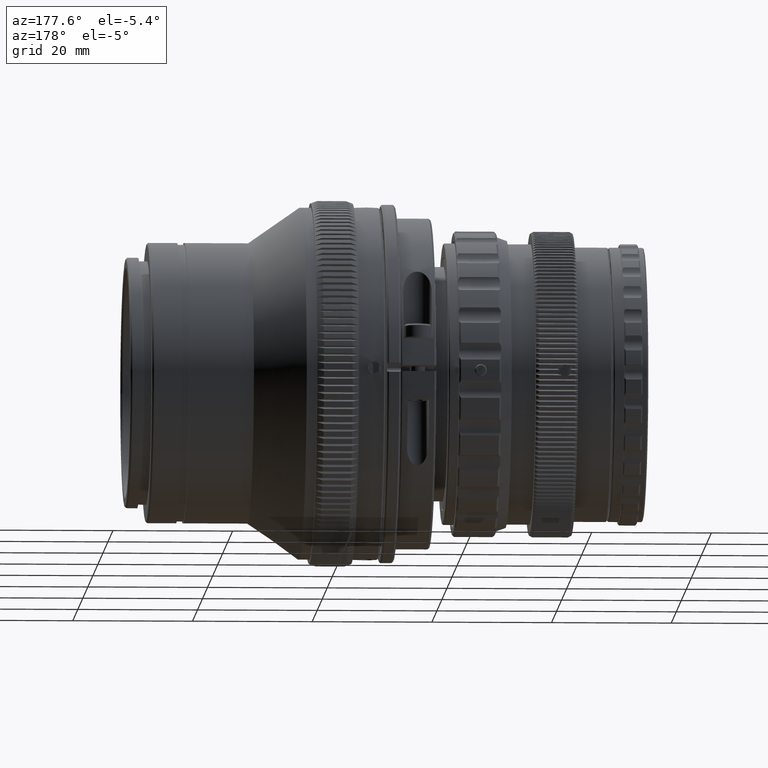
[diagram: clean part render]
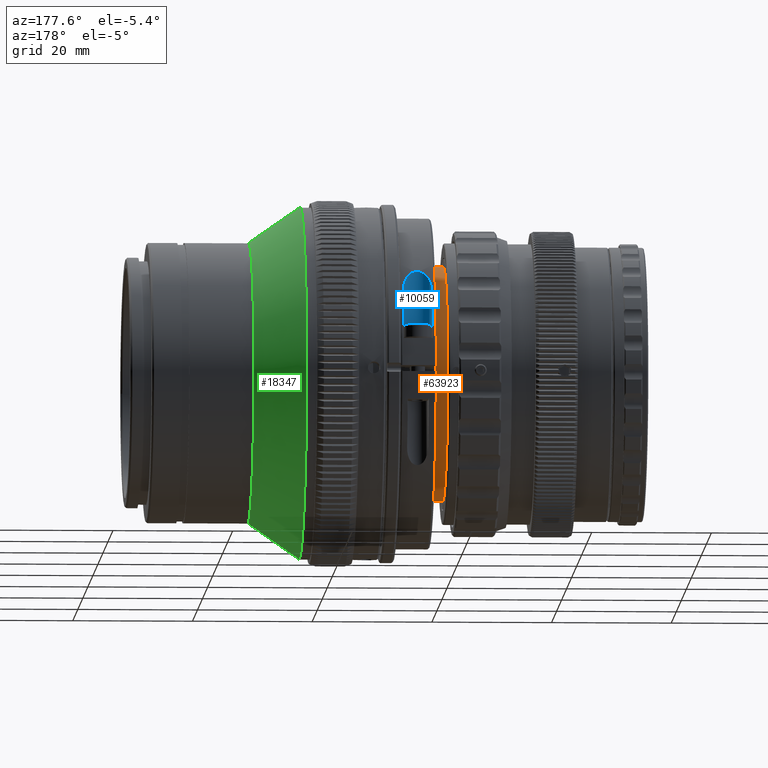
[diagram: same view with three faces highlighted in distinct colors, each labeled with its STEP entity id]
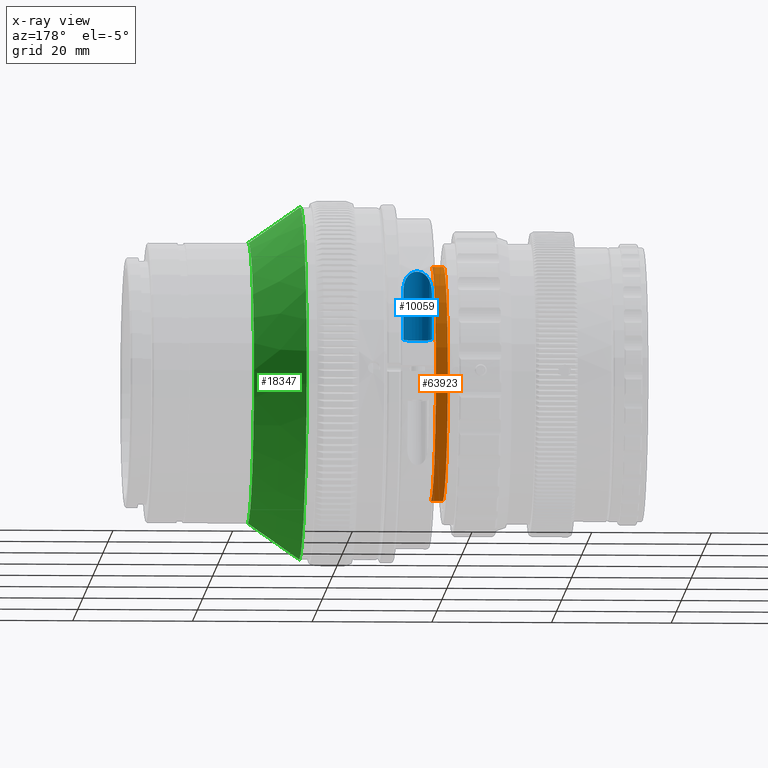
[diagram: x-ray of the same camera — body ghosted, the three highlighted faces saturated]
A machine part, auxiliary view with three faces highlighted in distinct colors.
The next image is the same camera in x-ray (body ghosted, the three faces saturated) — at least one of them is partly hidden behind the body in this view.
Their STEP definitions:

[orange] entity #63923 — the highlighted cylindrical surface (partial cylindrical patch) has radius 19.65 mm, axis along (-1, -0, -0).
#10038 = DIRECTION ( 'NONE',  ( 0.0000000000000000000, 0.0000000000000000000, 1.000000000000000000 ) ) ;
#10349 = VERTEX_POINT ( 'NONE', #62184 ) ;
#15870 = VERTEX_POINT ( 'NONE', #49673 ) ;
#18069 = CARTESIAN_POINT ( 'NONE',  ( 3.499999999999999600, 0.0000000000000000000, 0.0000000000000000000 ) ) ;
#21040 = CARTESIAN_POINT ( 'NONE',  ( 0.0000000000000000000, 0.0000000000000000000, 19.65000000000000600 ) ) ;
#23124 = FACE_OUTER_BOUND ( 'NONE', #69207, .T. ) ;
#24339 = DIRECTION ( 'NONE',  ( 0.0000000000000000000, 0.0000000000000000000, 1.000000000000000000 ) ) ;
#29272 = VECTOR ( 'NONE', #39521, 1000.000000000000000 ) ;
#29747 = AXIS2_PLACEMENT_3D ( 'NONE', #18069, #53801, #24339 ) ;
#31958 = DIRECTION ( 'NONE',  ( 1.000000000000000000, 0.0000000000000000000, 0.0000000000000000000 ) ) ;
#32055 = LINE ( 'NONE', #21040, #86886 ) ;
#35880 = DIRECTION ( 'NONE',  ( -1.000000000000000000, -0.0000000000000000000, -0.0000000000000000000 ) ) ;
#39521 = DIRECTION ( 'NONE',  ( -1.000000000000000000, -0.0000000000000000000, -0.0000000000000000000 ) ) ;
#41923 = ORIENTED_EDGE ( 'NONE', *, *, #81898, .T. ) ;
#42909 = CIRCLE ( 'NONE', #29747, 19.65000000000000600 ) ;
#48304 = CARTESIAN_POINT ( 'NONE',  ( 3.499999999999999600, 0.0000000000000000000, 19.65000000000000600 ) ) ;
#48359 = LINE ( 'NONE', #60137, #29272 ) ;
#49673 = CARTESIAN_POINT ( 'NONE',  ( 3.499999999999999600, 2.406430960324549800E-015, -19.65000000000000600 ) ) ;
#53801 = DIRECTION ( 'NONE',  ( -1.000000000000000000, -0.0000000000000000000, -0.0000000000000000000 ) ) ;
#57065 = DIRECTION ( 'NONE',  ( -1.000000000000000000, -0.0000000000000000000, -0.0000000000000000000 ) ) ;
#57740 = ORIENTED_EDGE ( 'NONE', *, *, #60376, .T. ) ;
#60062 = CYLINDRICAL_SURFACE ( 'NONE', #71409, 19.65000000000000600 ) ;
#60137 = CARTESIAN_POINT ( 'NONE',  ( 0.0000000000000000000, 2.406430960324549800E-015, -19.65000000000000600 ) ) ;
#60376 = EDGE_CURVE ( 'NONE', #15870, #81476, #48359, .T. ) ;
#62184 = CARTESIAN_POINT ( 'NONE',  ( 1.499999999999999300, 0.0000000000000000000, 19.65000000000000600 ) ) ;
#63923 = ADVANCED_FACE ( 'NONE', ( #23124 ), #60062, .T. ) ;
#64375 = EDGE_CURVE ( 'NONE', #70072, #10349, #32055, .T. ) ;
#64668 = AXIS2_PLACEMENT_3D ( 'NONE', #75152, #31958, #10038 ) ;
#69207 = EDGE_LOOP ( 'NONE', ( #73468, #57740, #41923, #86792 ) ) ;
#70072 = VERTEX_POINT ( 'NONE', #48304 ) ;
#71409 = AXIS2_PLACEMENT_3D ( 'NONE', #71850, #35880, #78472 ) ;
#71850 = CARTESIAN_POINT ( 'NONE',  ( 0.0000000000000000000, 0.0000000000000000000, 0.0000000000000000000 ) ) ;
#73468 = ORIENTED_EDGE ( 'NONE', *, *, #86660, .T. ) ;
#75152 = CARTESIAN_POINT ( 'NONE',  ( 1.499999999999999300, 0.0000000000000000000, 0.0000000000000000000 ) ) ;
#76502 = CARTESIAN_POINT ( 'NONE',  ( 1.499999999999999300, 2.406430960324549800E-015, -19.65000000000000600 ) ) ;
#78472 = DIRECTION ( 'NONE',  ( 0.0000000000000000000, 0.0000000000000000000, 1.000000000000000000 ) ) ;
#81476 = VERTEX_POINT ( 'NONE', #76502 ) ;
#81898 = EDGE_CURVE ( 'NONE', #81476, #10349, #89214, .T. ) ;
#86660 = EDGE_CURVE ( 'NONE', #70072, #15870, #42909, .T. ) ;
#86792 = ORIENTED_EDGE ( 'NONE', *, *, #64375, .F. ) ;
#86886 = VECTOR ( 'NONE', #57065, 1000.000000000000000 ) ;
#89214 = CIRCLE ( 'NONE', #64668, 19.65000000000000600 ) ;

[blue] entity #10059 — the highlighted cylindrical surface (edge-blend (fillet) strip) has radius 2.4 mm, axis along (-0, 0.003, -1).
#409 = EDGE_CURVE ( 'NONE', #75664, #92124, #4547, .T. ) ;
#964 = FACE_OUTER_BOUND ( 'NONE', #25678, .T. ) ;
#2832 = AXIS2_PLACEMENT_3D ( 'NONE', #23923, #59332, #52409 ) ;
#3272 = CARTESIAN_POINT ( 'NONE',  ( 0.6290278111421436800, 24.05595579161314000, 13.74076143386319200 ) ) ;
#3878 = CARTESIAN_POINT ( 'NONE',  ( 3.464800157502684100, 22.13522894264030700, 16.65329706869931300 ) ) ;
#4166 = CARTESIAN_POINT ( 'NONE',  ( 0.6000000000000010900, 24.50000000000000000, 12.92439553712281100 ) ) ;
#4509 = CARTESIAN_POINT ( 'NONE',  ( 5.269582536204592500, 23.71031825213921400, 14.32349533516205600 ) ) ;
#4547 = LINE ( 'NONE', #45688, #12392 ) ;
#6470 = CARTESIAN_POINT ( 'NONE',  ( 0.6000000000000009800, 24.50000000000000000, 5.100000000000004100 ) ) ;
#10059 = ADVANCED_FACE ( 'NONE', ( #964 ), #12226, .F. ) ;
#10836 = EDGE_CURVE ( 'NONE', #41513, #79018, #65850, .T. ) ;
#11411 = CARTESIAN_POINT ( 'NONE',  ( 5.225762141994972700, 23.59260800342785200, 14.51651529303000000 ) ) ;
#11725 = CARTESIAN_POINT ( 'NONE',  ( 0.8882989916392594100, 23.35194863457845200, 14.90055572143652200 ) ) ;
#12226 = CYLINDRICAL_SURFACE ( 'NONE', #75733, 2.399999999999999500 ) ;
#12392 = VECTOR ( 'NONE', #88263, 1000.000000000000000 ) ;
#17704 = CARTESIAN_POINT ( 'NONE',  ( 1.934357858360209500, 22.34711899489010300, 16.36768666497912900 ) ) ;
#18028 = CARTESIAN_POINT ( 'NONE',  ( 4.072513483301443100, 22.34460727023669700, 16.37181362196031400 ) ) ;
#18331 = CARTESIAN_POINT ( 'NONE',  ( 5.400000000000000400, 24.50000000000000000, 12.92439553712281100 ) ) ;
#18633 = CARTESIAN_POINT ( 'NONE',  ( 0.7754783309864105000, 23.58961193414730700, 14.52137302860721000 ) ) ;
#19266 = ORIENTED_EDGE ( 'NONE', *, *, #61309, .F. ) ;
#22005 = CARTESIAN_POINT ( 'NONE',  ( 0.6000000000000010900, 24.50000000000000000, 12.92439553712281100 ) ) ;
#22202 = DIRECTION ( 'NONE',  ( -0.0000000000000000000, -0.0000000000000000000, -1.000000000000000000 ) ) ;
#23443 = ORIENTED_EDGE ( 'NONE', *, *, #10836, .F. ) ;
#23923 = CARTESIAN_POINT ( 'NONE',  ( 3.000000000000000400, 24.50000000000000000, 5.100000000000004100 ) ) ;
#25545 = CARTESIAN_POINT ( 'NONE',  ( 2.769480854823688900, 22.10835057428138100, 16.68866619432431600 ) ) ;
#25678 = EDGE_LOOP ( 'NONE', ( #32450, #19266, #23443, #77979 ) ) ;
#28174 = DIRECTION ( 'NONE',  ( -1.000000000000000000, 0.0000000000000000000, 0.0000000000000000000 ) ) ;
#32450 = ORIENTED_EDGE ( 'NONE', *, *, #409, .F. ) ;
#32455 = CARTESIAN_POINT ( 'NONE',  ( 5.400000000000001200, 24.28327067466471300, 13.33523629601658000 ) ) ;
#32755 = CARTESIAN_POINT ( 'NONE',  ( 1.126864413436437800, 22.99242413223094400, 15.44944493546991600 ) ) ;
#33041 = CARTESIAN_POINT ( 'NONE',  ( 1.226094942638806800, 22.87512790885718100, 15.62235523528710400 ) ) ;
#33345 = CARTESIAN_POINT ( 'NONE',  ( 1.604354116139129900, 22.53838729960480700, 16.10399256618487100 ) ) ;
#39690 = CARTESIAN_POINT ( 'NONE',  ( 5.371344531460466400, 24.05826057532755500, 13.73670044174282400 ) ) ;
#41408 = CARTESIAN_POINT ( 'NONE',  ( 5.400000000000000400, 24.50000000000000000, 12.92439553712281100 ) ) ;
#41513 = VERTEX_POINT ( 'NONE', #22005 ) ;
#45688 = CARTESIAN_POINT ( 'NONE',  ( 5.400000000000000400, 24.50000000000000000, -21.72381424278583100 ) ) ;
#45986 = CIRCLE ( 'NONE', #2832, 2.399999999999999500 ) ;
#46247 = CARTESIAN_POINT ( 'NONE',  ( 0.9575499124156727800, 23.23121335029987800, 15.08799663849911500 ) ) ;
#46532 = CARTESIAN_POINT ( 'NONE',  ( 4.874606455835848200, 22.99426320565395800, 15.44670810279133400 ) ) ;
#46848 = CARTESIAN_POINT ( 'NONE',  ( 3.886061382067862000, 22.25877788531602500, 16.48779762896238300 ) ) ;
#47176 = CARTESIAN_POINT ( 'NONE',  ( 5.112993140091378800, 23.35429613856459200, 14.89688626956683300 ) ) ;
#52409 = DIRECTION ( 'NONE',  ( -1.000000000000000000, 0.0000000000000000000, 0.0000000000000000000 ) ) ;
#54364 = CARTESIAN_POINT ( 'NONE',  ( 3.236477609731574800, 22.10019462121859100, 16.69944303884422300 ) ) ;
#59332 = DIRECTION ( 'NONE',  ( 0.0000000000000000000, 0.0000000000000000000, 1.000000000000000000 ) ) ;
#61229 = CARTESIAN_POINT ( 'NONE',  ( 5.043581389639350700, 23.23304784540668400, 15.08517216994140000 ) ) ;
#61309 = EDGE_CURVE ( 'NONE', #79018, #75664, #45986, .T. ) ;
#61542 = CARTESIAN_POINT ( 'NONE',  ( 2.884736474320601700, 22.09990391887509300, 16.69982774768435300 ) ) ;
#65103 = CARTESIAN_POINT ( 'NONE',  ( 0.6000000000000010900, 24.50000000000000000, -21.72381424278583100 ) ) ;
#65850 = LINE ( 'NONE', #65103, #83700 ) ;
#67786 = CARTESIAN_POINT ( 'NONE',  ( 4.535160316738717300, 22.64782221505264600, 15.95011226006279000 ) ) ;
#68396 = CARTESIAN_POINT ( 'NONE',  ( 4.774416312254915700, 22.87558426012751800, 15.62170211439982400 ) ) ;
#69169 = CARTESIAN_POINT ( 'NONE',  ( 5.400000000000000400, 24.50000000000000000, 5.100000000000004100 ) ) ;
#71934 = DIRECTION ( 'NONE',  ( -0.0000000000000000000, -0.0000000000000000000, -1.000000000000000000 ) ) ;
#75019 = CARTESIAN_POINT ( 'NONE',  ( 2.121646024052700000, 22.26415919861471300, 16.48035525446746900 ) ) ;
#75641 = CARTESIAN_POINT ( 'NONE',  ( 0.7314491160722744700, 23.70731596340940700, 14.32847002539596400 ) ) ;
#75664 = VERTEX_POINT ( 'NONE', #69169 ) ;
#75733 = AXIS2_PLACEMENT_3D ( 'NONE', #85112, #71934, #28174 ) ;
#76261 = CARTESIAN_POINT ( 'NONE',  ( 2.221919598282470400, 22.22700813642764900, 16.53035773910230000 ) ) ;
#76672 = EDGE_CURVE ( 'NONE', #92124, #41513, #81096, .T. ) ;
#77979 = ORIENTED_EDGE ( 'NONE', *, *, #76672, .F. ) ;
#79018 = VERTEX_POINT ( 'NONE', #6470 ) ;
#81096 = B_SPLINE_CURVE_WITH_KNOTS ( 'NONE', 3,
 ( #18331, #32455, #39690, #4509, #11411, #47176, #61229, #46532, #68396, #67786, #82760, #18028, #46848, #3878, #54364, #61542, #25545, #89099, #83380, #76261, #75019, #17704, #90326, #33345, #82165, #33041, #32755, #46247, #11725, #18633, #75641, #3272, #90026, #4166 ),
 .UNSPECIFIED., .F., .F.,
 ( 4, 2, 2, 2, 2, 2, 2, 2, 2, 2, 2, 2, 2, 2, 2, 2, 4 ),
 ( 1.734723475976806900E-018, 0.001379358958779692800, 0.002069038438169538500, 0.002758717917559383900, 0.003448397396949229300, 0.004138076876339078600, 0.004827756355728928000, 0.005517435835118777300, 0.005862275574813702000, 0.006207115314508627500, 0.006551955054203553000, 0.006896794793898477700, 0.007586474273288332200, 0.008276153752678186800, 0.008965833232068043000, 0.009655512711457899300, 0.01103487167023760700 ),
 .UNSPECIFIED. ) ;
#82165 = CARTESIAN_POINT ( 'NONE',  ( 1.463863482543631400, 22.64872123524211400, 15.94882084520269100 ) ) ;
#82760 = CARTESIAN_POINT ( 'NONE',  ( 4.397883889465390400, 22.53991744486282300, 16.10185942405682600 ) ) ;
#83380 = CARTESIAN_POINT ( 'NONE',  ( 2.431340390392804400, 22.16579191762936700, 16.61235342580567600 ) ) ;
#83700 = VECTOR ( 'NONE', #22202, 1000.000000000000000 ) ;
#85112 = CARTESIAN_POINT ( 'NONE',  ( 3.000000000000000400, 24.50000000000000000, -21.72381424278583100 ) ) ;
#88263 = DIRECTION ( 'NONE',  ( 0.0000000000000000000, 0.0000000000000000000, 1.000000000000000000 ) ) ;
#89099 = CARTESIAN_POINT ( 'NONE',  ( 2.542707557719089200, 22.14118468843664500, 16.64507990528883500 ) ) ;
#90026 = CARTESIAN_POINT ( 'NONE',  ( 0.6000000000000000900, 24.28317422150367800, 13.33541913647812500 ) ) ;
#90326 = CARTESIAN_POINT ( 'NONE',  ( 1.847653396576206100, 22.39262360731406100, 16.30543705764560900 ) ) ;
#92124 = VERTEX_POINT ( 'NONE', #41408 ) ;

[green] entity #18347 — the highlighted conical surface has half-angle 35 deg.
#25 = EDGE_CURVE ( 'NONE', #83375, #57641, #90912, .T. ) ;
#7843 = CARTESIAN_POINT ( 'NONE',  ( 13.23111195954733100, 3.612708057484692400E-015, -29.50000000000000700 ) ) ;
#8509 = LINE ( 'NONE', #62206, #82464 ) ;
#12164 = ORIENTED_EDGE ( 'NONE', *, *, #25, .T. ) ;
#15754 = CIRCLE ( 'NONE', #90792, 29.50000000000000400 ) ;
#18347 = ADVANCED_FACE ( 'NONE', ( #73427 ), #92455, .T. ) ;
#18978 = VERTEX_POINT ( 'NONE', #50894 ) ;
#21003 = CARTESIAN_POINT ( 'NONE',  ( 13.23111195954734500, 0.0000000000000000000, 0.0000000000000000000 ) ) ;
#21424 = CIRCLE ( 'NONE', #24427, 23.50000000000000000 ) ;
#21987 = ORIENTED_EDGE ( 'NONE', *, *, #60257, .T. ) ;
#22944 = ORIENTED_EDGE ( 'NONE', *, *, #48259, .F. ) ;
#24427 = AXIS2_PLACEMENT_3D ( 'NONE', #35682, #34450, #56083 ) ;
#25411 = ORIENTED_EDGE ( 'NONE', *, *, #63649, .F. ) ;
#28798 = DIRECTION ( 'NONE',  ( -1.000000000000000000, 0.0000000000000000000, 0.0000000000000000000 ) ) ;
#29720 = DIRECTION ( 'NONE',  ( 0.0000000000000000000, 0.0000000000000000000, 1.000000000000000000 ) ) ;
#32382 = AXIS2_PLACEMENT_3D ( 'NONE', #65091, #28798, #29720 ) ;
#32811 = DIRECTION ( 'NONE',  ( -0.8191520442889909100, 0.0000000000000000000, 0.5735764363510472700 ) ) ;
#34450 = DIRECTION ( 'NONE',  ( -1.000000000000000000, -0.0000000000000000000, -0.0000000000000000000 ) ) ;
#35682 = CARTESIAN_POINT ( 'NONE',  ( 21.80000000000000100, 0.0000000000000000000, 0.0000000000000000000 ) ) ;
#37526 = CARTESIAN_POINT ( 'NONE',  ( 13.23111195954734500, 3.612708057484690800E-015, -29.49999999999999600 ) ) ;
#42568 = EDGE_LOOP ( 'NONE', ( #21987, #12164, #22944, #25411 ) ) ;
#43979 = DIRECTION ( 'NONE',  ( -0.8191520442889909100, 7.024285468436556000E-017, -0.5735764363510472700 ) ) ;
#47036 = CARTESIAN_POINT ( 'NONE',  ( 21.80000000000000100, 0.0000000000000000000, 23.50000000000000000 ) ) ;
#47487 = CARTESIAN_POINT ( 'NONE',  ( 21.80000000000000100, 2.877919977996280300E-015, -23.50000000000000000 ) ) ;
#48259 = EDGE_CURVE ( 'NONE', #18978, #57641, #15754, .T. ) ;
#50894 = CARTESIAN_POINT ( 'NONE',  ( 13.23111195954734500, 0.0000000000000000000, 29.49999999999999600 ) ) ;
#52549 = VERTEX_POINT ( 'NONE', #47036 ) ;
#52857 = VECTOR ( 'NONE', #43979, 1000.000000000000000 ) ;
#56083 = DIRECTION ( 'NONE',  ( 0.0000000000000000000, 0.0000000000000000000, 1.000000000000000000 ) ) ;
#57641 = VERTEX_POINT ( 'NONE', #37526 ) ;
#60257 = EDGE_CURVE ( 'NONE', #52549, #83375, #21424, .T. ) ;
#62206 = CARTESIAN_POINT ( 'NONE',  ( 13.23111195954733100, 0.0000000000000000000, 29.50000000000000700 ) ) ;
#63649 = EDGE_CURVE ( 'NONE', #52549, #18978, #8509, .T. ) ;
#64510 = DIRECTION ( 'NONE',  ( 0.0000000000000000000, 0.0000000000000000000, 1.000000000000000000 ) ) ;
#65091 = CARTESIAN_POINT ( 'NONE',  ( 13.23111195954733100, 0.0000000000000000000, 0.0000000000000000000 ) ) ;
#72005 = DIRECTION ( 'NONE',  ( -1.000000000000000000, -0.0000000000000000000, -0.0000000000000000000 ) ) ;
#73427 = FACE_OUTER_BOUND ( 'NONE', #42568, .T. ) ;
#82464 = VECTOR ( 'NONE', #32811, 1000.000000000000000 ) ;
#83375 = VERTEX_POINT ( 'NONE', #47487 ) ;
#90792 = AXIS2_PLACEMENT_3D ( 'NONE', #21003, #72005, #64510 ) ;
#90912 = LINE ( 'NONE', #7843, #52857 ) ;
#92455 = CONICAL_SURFACE ( 'NONE', #32382, 29.50000000000000700, 0.6108652381980167500 ) ;